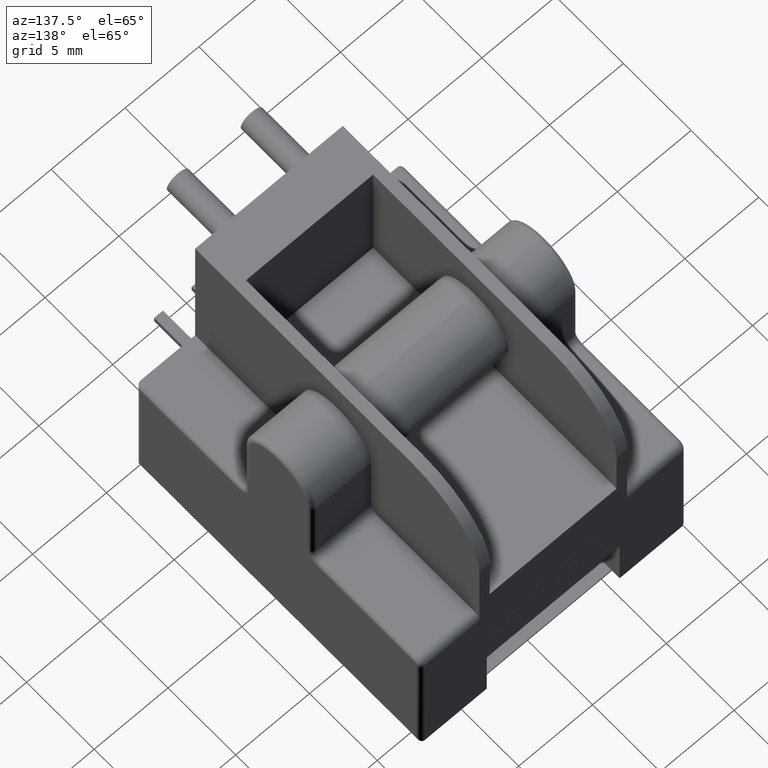
[diagram: clean part render]
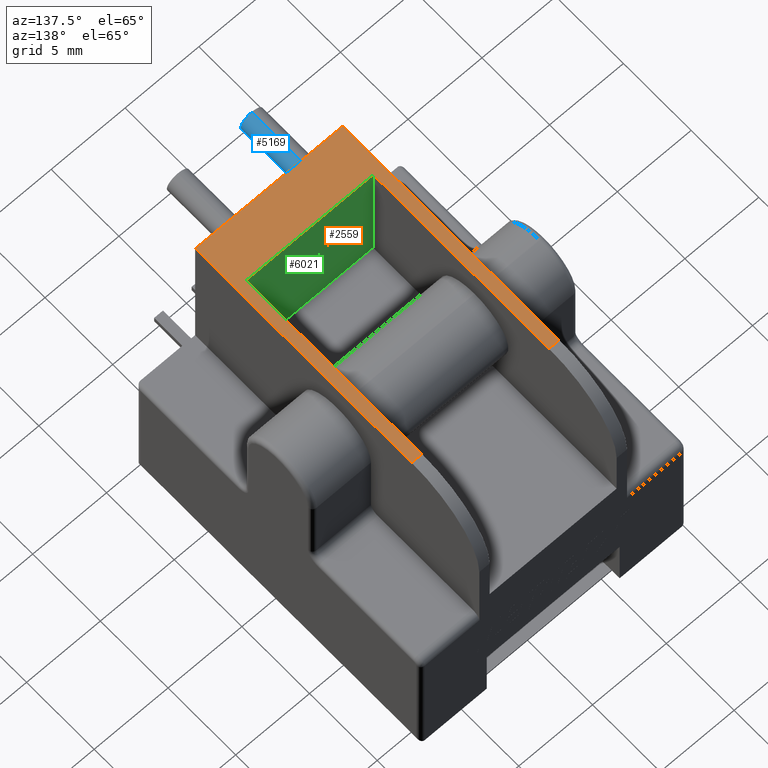
[diagram: same view with three faces highlighted in distinct colors, each labeled with its STEP entity id]
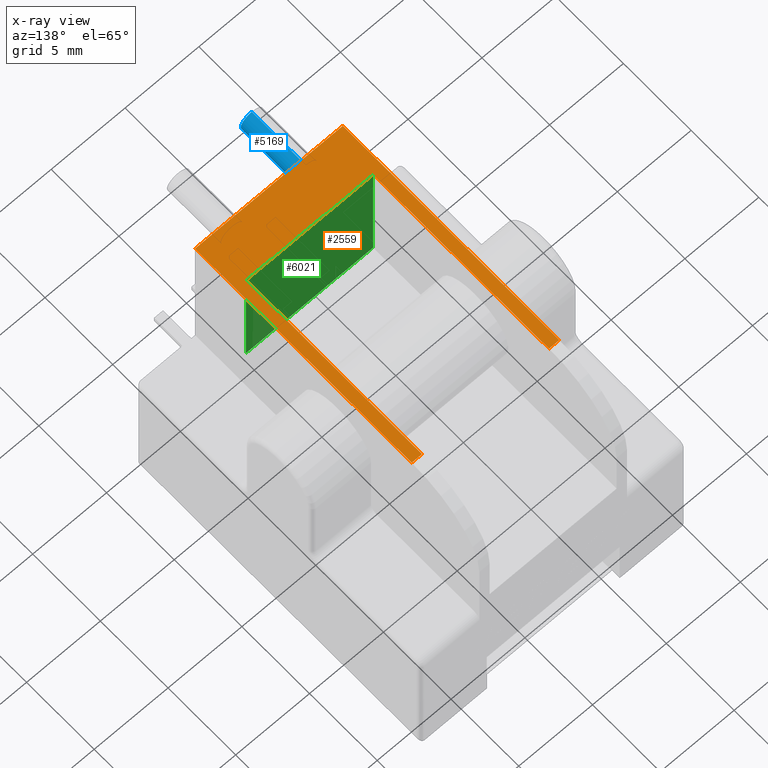
[diagram: x-ray of the same camera — body ghosted, the three highlighted faces saturated]
A machine part, auxiliary view with three faces highlighted in distinct colors.
The next image is the same camera in x-ray (body ghosted, the three faces saturated) — at least one of them is partly hidden behind the body in this view.
Their STEP definitions:

[orange] entity #2559 — the highlighted planar face has unit normal (0, 0, -1).
#79 = DIRECTION ( 'NONE',  ( 1.000000000000000000, 0.0000000000000000000, 0.0000000000000000000 ) ) ;
#109 = CARTESIAN_POINT ( 'NONE',  ( 13.99999999999999800, 0.0000000000000000000, 0.0000000000000000000 ) ) ;
#186 = VERTEX_POINT ( 'NONE', #5353 ) ;
#245 = VECTOR ( 'NONE', #1305, 1000.000000000000000 ) ;
#318 = DIRECTION ( 'NONE',  ( 0.0000000000000000000, 0.0000000000000000000, -1.000000000000000000 ) ) ;
#377 = AXIS2_PLACEMENT_3D ( 'NONE', #3981, #318, #4508 ) ;
#457 = LINE ( 'NONE', #4743, #4461 ) ;
#466 = CARTESIAN_POINT ( 'NONE',  ( 4.000000000000000000, 15.99999999999999600, 0.0000000000000000000 ) ) ;
#510 = VECTOR ( 'NONE', #1855, 1000.000000000000000 ) ;
#686 = CARTESIAN_POINT ( 'NONE',  ( 13.29999999999999700, 2.999999999999999100, 6.014080369931249300E-019 ) ) ;
#712 = FACE_OUTER_BOUND ( 'NONE', #1655, .T. ) ;
#761 = LINE ( 'NONE', #3174, #2779 ) ;
#1037 = CARTESIAN_POINT ( 'NONE',  ( 4.700000000000001100, 15.99999999999999600, 6.014080369931249300E-019 ) ) ;
#1080 = EDGE_CURVE ( 'NONE', #2031, #186, #3028, .T. ) ;
#1244 = LINE ( 'NONE', #1895, #510 ) ;
#1305 = DIRECTION ( 'NONE',  ( -1.000000000000000000, 0.0000000000000000000, 0.0000000000000000000 ) ) ;
#1393 = DIRECTION ( 'NONE',  ( -1.000000000000000000, 0.0000000000000000000, 0.0000000000000000000 ) ) ;
#1451 = EDGE_CURVE ( 'NONE', #186, #6033, #3415, .T. ) ;
#1461 = VECTOR ( 'NONE', #3920, 1000.000000000000000 ) ;
#1502 = VERTEX_POINT ( 'NONE', #2109 ) ;
#1614 = CARTESIAN_POINT ( 'NONE',  ( 4.700000000000001100, 2.999999999999999100, 6.014080369931249300E-019 ) ) ;
#1654 = CARTESIAN_POINT ( 'NONE',  ( 4.700000000000001100, 2.999999999999999100, 6.014080369931249300E-019 ) ) ;
#1655 = EDGE_LOOP ( 'NONE', ( #6005, #3019, #4591, #4818, #4012, #3939, #3339, #5644 ) ) ;
#1730 = EDGE_CURVE ( 'NONE', #3511, #3380, #1244, .T. ) ;
#1846 = DIRECTION ( 'NONE',  ( 0.0000000000000000000, -1.000000000000000000, 0.0000000000000000000 ) ) ;
#1855 = DIRECTION ( 'NONE',  ( 0.0000000000000000000, -1.000000000000000000, 0.0000000000000000000 ) ) ;
#1895 = CARTESIAN_POINT ( 'NONE',  ( 13.99999999999999800, 20.99999999999999600, 0.0000000000000000000 ) ) ;
#1994 = LINE ( 'NONE', #1654, #2521 ) ;
#1995 = VECTOR ( 'NONE', #5537, 1000.000000000000000 ) ;
#2031 = VERTEX_POINT ( 'NONE', #1614 ) ;
#2109 = CARTESIAN_POINT ( 'NONE',  ( 4.000000000000000000, 15.99999999999999600, 0.0000000000000000000 ) ) ;
#2521 = VECTOR ( 'NONE', #4941, 1000.000000000000000 ) ;
#2559 = ADVANCED_FACE ( 'NONE', ( #712 ), #4843, .F. ) ;
#2730 = CARTESIAN_POINT ( 'NONE',  ( 4.700000000000001100, 2.999999999999999100, 6.014080369931249300E-019 ) ) ;
#2779 = VECTOR ( 'NONE', #1846, 1000.000000000000000 ) ;
#2978 = CARTESIAN_POINT ( 'NONE',  ( 13.99999999999999800, 15.99999999999999600, 0.0000000000000000000 ) ) ;
#3003 = VECTOR ( 'NONE', #1393, 1000.000000000000000 ) ;
#3019 = ORIENTED_EDGE ( 'NONE', *, *, #5069, .T. ) ;
#3028 = LINE ( 'NONE', #2730, #1995 ) ;
#3048 = VERTEX_POINT ( 'NONE', #1037 ) ;
#3174 = CARTESIAN_POINT ( 'NONE',  ( 4.000000000000000000, 20.99999999999999600, 0.0000000000000000000 ) ) ;
#3339 = ORIENTED_EDGE ( 'NONE', *, *, #3857, .T. ) ;
#3380 = VERTEX_POINT ( 'NONE', #109 ) ;
#3415 = LINE ( 'NONE', #686, #1461 ) ;
#3511 = VERTEX_POINT ( 'NONE', #2978 ) ;
#3816 = EDGE_CURVE ( 'NONE', #1502, #5503, #761, .T. ) ;
#3847 = CARTESIAN_POINT ( 'NONE',  ( 4.000000000000000000, 0.0000000000000000000, 0.0000000000000000000 ) ) ;
#3857 = EDGE_CURVE ( 'NONE', #3511, #6033, #5755, .T. ) ;
#3920 = DIRECTION ( 'NONE',  ( -0.0000000000000000000, 1.000000000000000000, -0.0000000000000000000 ) ) ;
#3939 = ORIENTED_EDGE ( 'NONE', *, *, #1730, .F. ) ;
#3981 = CARTESIAN_POINT ( 'NONE',  ( 0.0000000000000000000, 0.0000000000000000000, 0.0000000000000000000 ) ) ;
#4012 = ORIENTED_EDGE ( 'NONE', *, *, #5989, .T. ) ;
#4101 = LINE ( 'NONE', #4639, #245 ) ;
#4461 = VECTOR ( 'NONE', #79, 1000.000000000000000 ) ;
#4508 = DIRECTION ( 'NONE',  ( -1.000000000000000000, 0.0000000000000000000, -0.0000000000000000000 ) ) ;
#4591 = ORIENTED_EDGE ( 'NONE', *, *, #5245, .T. ) ;
#4639 = CARTESIAN_POINT ( 'NONE',  ( 4.000000000000000000, 15.99999999999999600, 0.0000000000000000000 ) ) ;
#4743 = CARTESIAN_POINT ( 'NONE',  ( 0.0000000000000000000, 0.0000000000000000000, 0.0000000000000000000 ) ) ;
#4818 = ORIENTED_EDGE ( 'NONE', *, *, #3816, .T. ) ;
#4843 = PLANE ( 'NONE',  #377 ) ;
#4941 = DIRECTION ( 'NONE',  ( -0.0000000000000000000, 1.000000000000000000, -0.0000000000000000000 ) ) ;
#5069 = EDGE_CURVE ( 'NONE', #2031, #3048, #1994, .T. ) ;
#5245 = EDGE_CURVE ( 'NONE', #3048, #1502, #4101, .T. ) ;
#5353 = CARTESIAN_POINT ( 'NONE',  ( 13.29999999999999700, 2.999999999999999100, 6.014080369931249300E-019 ) ) ;
#5503 = VERTEX_POINT ( 'NONE', #3847 ) ;
#5537 = DIRECTION ( 'NONE',  ( 1.000000000000000000, 0.0000000000000000000, 0.0000000000000000000 ) ) ;
#5644 = ORIENTED_EDGE ( 'NONE', *, *, #1451, .F. ) ;
#5722 = CARTESIAN_POINT ( 'NONE',  ( 13.29999999999999700, 15.99999999999999600, 0.0000000000000000000 ) ) ;
#5755 = LINE ( 'NONE', #466, #3003 ) ;
#5989 = EDGE_CURVE ( 'NONE', #5503, #3380, #457, .T. ) ;
#6005 = ORIENTED_EDGE ( 'NONE', *, *, #1080, .F. ) ;
#6033 = VERTEX_POINT ( 'NONE', #5722 ) ;

[blue] entity #5169 — the highlighted cylindrical surface (edge-blend (fillet) strip) has radius 0.75 mm, axis along (-0, 1, -0).
#116 = EDGE_CURVE ( 'NONE', #1628, #1028, #4919, .T. ) ;
#190 = VECTOR ( 'NONE', #4524, 1000.000000000000000 ) ;
#192 = DIRECTION ( 'NONE',  ( 0.0000000000000000000, 0.0000000000000000000, -1.000000000000000000 ) ) ;
#404 = CARTESIAN_POINT ( 'NONE',  ( 6.499999999999999100, 0.0000000000000000000, -2.549999999999999400 ) ) ;
#410 = VERTEX_POINT ( 'NONE', #4597 ) ;
#747 = ORIENTED_EDGE ( 'NONE', *, *, #4163, .F. ) ;
#881 = DIRECTION ( 'NONE',  ( 0.0000000000000000000, 0.0000000000000000000, 1.000000000000000000 ) ) ;
#931 = ORIENTED_EDGE ( 'NONE', *, *, #1506, .T. ) ;
#1028 = VERTEX_POINT ( 'NONE', #4492 ) ;
#1422 = LINE ( 'NONE', #4927, #190 ) ;
#1506 = EDGE_CURVE ( 'NONE', #4627, #410, #2098, .T. ) ;
#1538 = VECTOR ( 'NONE', #4426, 1000.000000000000000 ) ;
#1628 = VERTEX_POINT ( 'NONE', #5063 ) ;
#1883 = LINE ( 'NONE', #2972, #1538 ) ;
#1988 = AXIS2_PLACEMENT_3D ( 'NONE', #5101, #2287, #881 ) ;
#2098 = CIRCLE ( 'NONE', #4253, 0.7500000000000002200 ) ;
#2129 = FACE_OUTER_BOUND ( 'NONE', #5674, .T. ) ;
#2287 = DIRECTION ( 'NONE',  ( -0.0000000000000000000, 1.000000000000000000, -0.0000000000000000000 ) ) ;
#2482 = ORIENTED_EDGE ( 'NONE', *, *, #2607, .T. ) ;
#2607 = EDGE_CURVE ( 'NONE', #1628, #4627, #1422, .T. ) ;
#2888 = CARTESIAN_POINT ( 'NONE',  ( 6.499999999999999100, -4.000000000000000000, -1.799999999999998700 ) ) ;
#2966 = DIRECTION ( 'NONE',  ( 0.0000000000000000000, -1.000000000000000000, 0.0000000000000000000 ) ) ;
#2972 = CARTESIAN_POINT ( 'NONE',  ( 6.499999999999999100, -4.000000000000000000, -1.049999999999998500 ) ) ;
#3941 = AXIS2_PLACEMENT_3D ( 'NONE', #2888, #5773, #5316 ) ;
#4163 = EDGE_CURVE ( 'NONE', #1028, #410, #1883, .T. ) ;
#4253 = AXIS2_PLACEMENT_3D ( 'NONE', #4464, #2966, #192 ) ;
#4426 = DIRECTION ( 'NONE',  ( -0.0000000000000000000, 1.000000000000000000, -0.0000000000000000000 ) ) ;
#4464 = CARTESIAN_POINT ( 'NONE',  ( 6.499999999999999100, 0.0000000000000000000, -1.799999999999998700 ) ) ;
#4492 = CARTESIAN_POINT ( 'NONE',  ( 6.499999999999999100, -4.000000000000000000, -1.049999999999998300 ) ) ;
#4524 = DIRECTION ( 'NONE',  ( -0.0000000000000000000, 1.000000000000000000, -0.0000000000000000000 ) ) ;
#4597 = CARTESIAN_POINT ( 'NONE',  ( 6.499999999999999100, 0.0000000000000000000, -1.049999999999998300 ) ) ;
#4627 = VERTEX_POINT ( 'NONE', #404 ) ;
#4919 = CIRCLE ( 'NONE', #3941, 0.7500000000000002200 ) ;
#4927 = CARTESIAN_POINT ( 'NONE',  ( 6.499999999999999100, -4.000000000000000000, -2.549999999999998900 ) ) ;
#5063 = CARTESIAN_POINT ( 'NONE',  ( 6.499999999999999100, -4.000000000000000000, -2.549999999999999400 ) ) ;
#5101 = CARTESIAN_POINT ( 'NONE',  ( 6.499999999999999100, -4.000000000000000000, -1.799999999999998700 ) ) ;
#5169 = ADVANCED_FACE ( 'NONE', ( #2129 ), #5970, .T. ) ;
#5316 = DIRECTION ( 'NONE',  ( 0.0000000000000000000, 0.0000000000000000000, -1.000000000000000000 ) ) ;
#5674 = EDGE_LOOP ( 'NONE', ( #5958, #2482, #931, #747 ) ) ;
#5773 = DIRECTION ( 'NONE',  ( 0.0000000000000000000, -1.000000000000000000, 0.0000000000000000000 ) ) ;
#5958 = ORIENTED_EDGE ( 'NONE', *, *, #116, .F. ) ;
#5970 = CYLINDRICAL_SURFACE ( 'NONE', #1988, 0.7500000000000002200 ) ;

[green] entity #6021 — the highlighted planar face has unit normal (0, 1, 0).
#137 = DIRECTION ( 'NONE',  ( 2.012708331919020000E-016, -0.0000000000000000000, -1.000000000000000000 ) ) ;
#171 = VERTEX_POINT ( 'NONE', #5868 ) ;
#186 = VERTEX_POINT ( 'NONE', #5353 ) ;
#563 = DIRECTION ( 'NONE',  ( 0.0000000000000000000, -0.0000000000000000000, 1.000000000000000000 ) ) ;
#720 = EDGE_CURVE ( 'NONE', #186, #5423, #4501, .T. ) ;
#1061 = EDGE_CURVE ( 'NONE', #5423, #171, #5082, .T. ) ;
#1080 = EDGE_CURVE ( 'NONE', #2031, #186, #3028, .T. ) ;
#1215 = ORIENTED_EDGE ( 'NONE', *, *, #2749, .T. ) ;
#1315 = DIRECTION ( 'NONE',  ( -1.000000000000000000, -0.0000000000000000000, -0.0000000000000000000 ) ) ;
#1444 = ORIENTED_EDGE ( 'NONE', *, *, #1061, .T. ) ;
#1517 = CARTESIAN_POINT ( 'NONE',  ( 13.29999999999999900, 2.999999999999999100, -8.618851765386354600 ) ) ;
#1614 = CARTESIAN_POINT ( 'NONE',  ( 4.700000000000001100, 2.999999999999999100, 6.014080369931249300E-019 ) ) ;
#1995 = VECTOR ( 'NONE', #5537, 1000.000000000000000 ) ;
#2031 = VERTEX_POINT ( 'NONE', #1614 ) ;
#2209 = CARTESIAN_POINT ( 'NONE',  ( 4.700000000000000200, 2.999999999999999100, -8.618851765386354600 ) ) ;
#2689 = ORIENTED_EDGE ( 'NONE', *, *, #720, .T. ) ;
#2730 = CARTESIAN_POINT ( 'NONE',  ( 4.700000000000001100, 2.999999999999999100, 6.014080369931249300E-019 ) ) ;
#2749 = EDGE_CURVE ( 'NONE', #171, #2031, #5696, .T. ) ;
#2955 = VECTOR ( 'NONE', #137, 1000.000000000000000 ) ;
#3028 = LINE ( 'NONE', #2730, #1995 ) ;
#3334 = ORIENTED_EDGE ( 'NONE', *, *, #1080, .T. ) ;
#3342 = DIRECTION ( 'NONE',  ( 0.0000000000000000000, 1.000000000000000000, 0.0000000000000000000 ) ) ;
#3346 = CARTESIAN_POINT ( 'NONE',  ( 13.29999999999999900, 2.999999999999999100, -8.618851765386354600 ) ) ;
#3801 = CARTESIAN_POINT ( 'NONE',  ( 0.0000000000000000000, 2.999999999999999100, 0.0000000000000000000 ) ) ;
#4061 = DIRECTION ( 'NONE',  ( 1.006354165959510000E-016, 0.0000000000000000000, 1.000000000000000000 ) ) ;
#4141 = AXIS2_PLACEMENT_3D ( 'NONE', #3801, #3342, #563 ) ;
#4501 = LINE ( 'NONE', #1517, #2955 ) ;
#4904 = FACE_OUTER_BOUND ( 'NONE', #5242, .T. ) ;
#5082 = LINE ( 'NONE', #6037, #5240 ) ;
#5234 = VECTOR ( 'NONE', #4061, 1000.000000000000000 ) ;
#5240 = VECTOR ( 'NONE', #1315, 1000.000000000000000 ) ;
#5242 = EDGE_LOOP ( 'NONE', ( #1215, #3334, #2689, #1444 ) ) ;
#5353 = CARTESIAN_POINT ( 'NONE',  ( 13.29999999999999700, 2.999999999999999100, 6.014080369931249300E-019 ) ) ;
#5423 = VERTEX_POINT ( 'NONE', #3346 ) ;
#5537 = DIRECTION ( 'NONE',  ( 1.000000000000000000, 0.0000000000000000000, 0.0000000000000000000 ) ) ;
#5679 = PLANE ( 'NONE',  #4141 ) ;
#5696 = LINE ( 'NONE', #2209, #5234 ) ;
#5868 = CARTESIAN_POINT ( 'NONE',  ( 4.700000000000000200, 2.999999999999999100, -8.618851765386354600 ) ) ;
#6021 = ADVANCED_FACE ( 'NONE', ( #4904 ), #5679, .T. ) ;
#6037 = CARTESIAN_POINT ( 'NONE',  ( 4.700000000000000200, 2.999999999999999100, -8.618851765386354600 ) ) ;